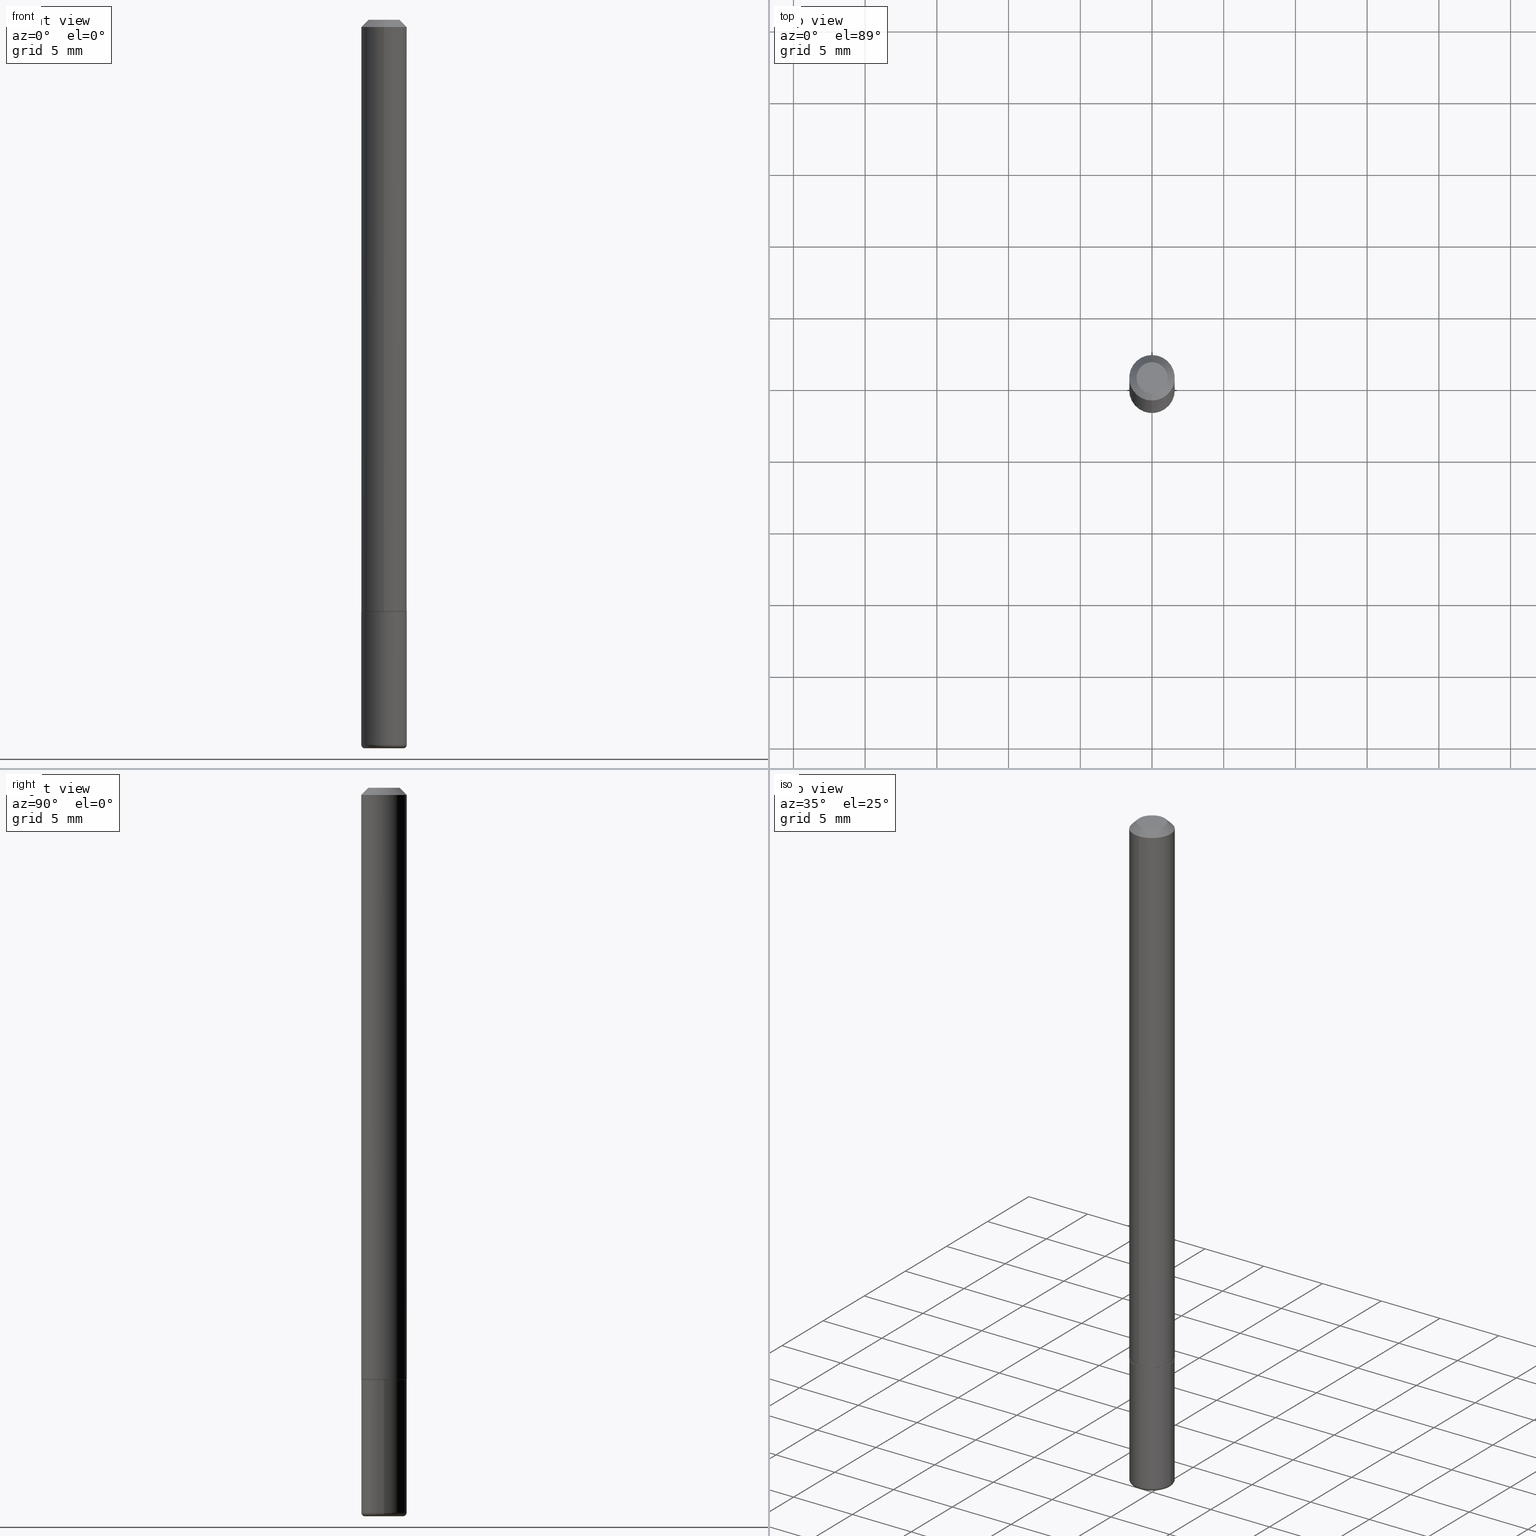
[diagram: canonical four-view strip — front | top / right | iso, engineering-drawing reading convention]
A machine part, canonical four-view strip (front | top / right | iso — engineering-drawing reading convention). The complete STEP part file that produces these views, byte-faithful:
ISO-10303-21;
HEADER;
FILE_DESCRIPTION (( 'STEP AP203' ),
    '1' );
FILE_NAME ('37986.STEP',
    '2024-03-02T10:35:28',
    ( '' ),
    ( '' ),
    'SwSTEP 2.0',
    'SolidWorks 2023',
    '' );
FILE_SCHEMA (( 'CONFIG_CONTROL_DESIGN' ));
ENDSEC;

DATA;
#1 = CARTESIAN_POINT ( 'NONE',  ( 4.911100888723118566E-31, -6.954087718326643672E-17, -0.02000000000000006981 ) ) ;
#2 = AXIS2_PLACEMENT_3D ( 'NONE', #228, #5, #43 ) ;
#3 = CC_DESIGN_APPROVAL ( #233, ( #171 ) ) ;
#4 = VECTOR ( 'NONE', #348, 39.37007874015748143 ) ;
#5 = DIRECTION ( 'NONE',  ( 2.438088387897960049E-29, -3.491481338843145188E-15, -1.000000000000000000 ) ) ;
#6 = EDGE_LOOP ( 'NONE', ( #209, #89, #118, #418 ) ) ;
#7 = CARTESIAN_POINT ( 'NONE',  ( -2.605319852608829948E-45, 3.689116391589790153E-31, 1.060992193661172718E-16 ) ) ;
#8 = VERTEX_POINT ( 'NONE', #407 ) ;
#9 = SHAPE_DEFINITION_REPRESENTATION ( #320, #254 ) ;
#10 = CC_DESIGN_DATE_AND_TIME_ASSIGNMENT ( #154, #29, ( #187 ) ) ;
#11 = DIRECTION ( 'NONE',  ( -1.000000000000000000, 7.105427357600966360E-15, 0.000000000000000000 ) ) ;
#12 = ORIENTED_EDGE ( 'NONE', *, *, #344, .T. ) ;
#13 = AXIS2_PLACEMENT_3D ( 'NONE', #50, #179, #343 ) ;
#14 = CARTESIAN_POINT ( 'NONE',  ( -0.06250000000000001388, 4.440892098500627148E-16, -3.074334431409317165E-30 ) ) ;
#15 = VERTEX_POINT ( 'NONE', #288 ) ;
#16 = EDGE_CURVE ( 'NONE', #279, #351, #217, .T. ) ;
#17 = FACE_OUTER_BOUND ( 'NONE', #39, .T. ) ;
#18 = VERTEX_POINT ( 'NONE', #64 ) ;
#19 = VECTOR ( 'NONE', #293, 39.37007874015748854 ) ;
#20 = DIRECTION ( 'NONE',  ( -6.982962677686265922E-15, -1.000000000000000000, 4.442029257990672920E-15 ) ) ;
#21 = AXIS2_PLACEMENT_3D ( 'NONE', #33, #322, #349 ) ;
#22 = ORIENTED_EDGE ( 'NONE', *, *, #411, .F. ) ;
#23 = APPROVAL_ROLE ( '' ) ;
#24 = EDGE_CURVE ( 'NONE', #364, #201, #290, .T. ) ;
#25 = DIRECTION ( 'NONE',  ( 1.000000000000000000, -6.982962677686267499E-15, 4.876176775795935793E-29 ) ) ;
#26 = SECURITY_CLASSIFICATION_LEVEL ( 'unclassified' ) ;
#27 = CARTESIAN_POINT ( 'NONE',  ( 0.06249999999999992367, -7.384483031653253552E-15, -1.990000000000000435 ) ) ;
#28 = CIRCLE ( 'NONE', #261, 0.06250000000000001388 ) ;
#29 = DATE_TIME_ROLE ( 'classification_date' ) ;
#30 = UNCERTAINTY_MEASURE_WITH_UNIT (LENGTH_MEASURE( 1.000000000000000082E-05 ), #403, 'distance_accuracy_value', 'NONE');
#31 = DIRECTION ( 'NONE',  ( -6.982962677686265922E-15, -1.000000000000000000, 3.477043859163310348E-15 ) ) ;
#32 = PRODUCT_DEFINITION ( 'UNKNOWN', '', #171, #97 ) ;
#33 = CARTESIAN_POINT ( 'NONE',  ( 3.990269472087521188E-29, -5.650196271140380549E-15, -1.625000000000000222 ) ) ;
#34 = ORIENTED_EDGE ( 'NONE', *, *, #226, .F. ) ;
#35 = AXIS2_PLACEMENT_3D ( 'NONE', #128, #221, #25 ) ;
#36 = LOCAL_TIME ( 5, 35, 28.00000000000000000, #218 ) ;
#37 = ADVANCED_FACE ( 'NONE', ( #410 ), #95, .T. ) ;
#38 = DIRECTION ( 'NONE',  ( -2.455550444361550875E-29, 3.477043859163310348E-15, 1.000000000000000000 ) ) ;
#39 = EDGE_LOOP ( 'NONE', ( #106, #239 ) ) ;
#40 = DIRECTION ( 'NONE',  ( 1.000000000000000000, -6.982962677686266711E-15, 4.883557194083112901E-29 ) ) ;
#41 = EDGE_LOOP ( 'NONE', ( #292, #375, #12, #164 ) ) ;
#42 = DIMENSIONAL_EXPONENTS ( 1.000000000000000000, 0.000000000000000000, 0.000000000000000000, 0.000000000000000000, 0.000000000000000000, 0.000000000000000000, 0.000000000000000000 ) ;
#43 = DIRECTION ( 'NONE',  ( -1.000000000000000000, 6.982962677686265922E-15, -4.876176775795935793E-29 ) ) ;
#44 = ORIENTED_EDGE ( 'NONE', *, *, #411, .T. ) ;
#45 = CIRCLE ( 'NONE', #247, 0.06250000000000012490 ) ;
#46 = PLANE ( 'NONE',  #2 ) ;
#47 = EDGE_LOOP ( 'NONE', ( #362, #90, #370, #401 ) ) ;
#48 = ADVANCED_FACE ( 'NONE', ( #354 ), #224, .T. ) ;
#49 = FACE_OUTER_BOUND ( 'NONE', #151, .T. ) ;
#50 = CARTESIAN_POINT ( 'NONE',  ( 3.987813921643159440E-29, -5.646719227281216646E-15, -1.624000000000000110 ) ) ;
#51 = VECTOR ( 'NONE', #272, 39.37007874015748143 ) ;
#52 = EDGE_CURVE ( 'NONE', #364, #172, #257, .T. ) ;
#53 = CARTESIAN_POINT ( 'NONE',  ( 3.990269472087521188E-29, -5.650196271140380549E-15, -1.625000000000000222 ) ) ;
#54 = VERTEX_POINT ( 'NONE', #415 ) ;
#55 = LINE ( 'NONE', #238, #283 ) ;
#56 = ORIENTED_EDGE ( 'NONE', *, *, #138, .F. ) ;
#57 = CIRCLE ( 'NONE', #289, 0.06149999999999998523 ) ;
#58 = LINE ( 'NONE', #142, #51 ) ;
#59 = APPROVAL ( #287, 'UNSPECIFIED' ) ;
#60 = DIRECTION ( 'NONE',  ( -2.455550444361550875E-29, 3.477043859163310348E-15, 1.000000000000000000 ) ) ;
#61 = DIRECTION ( 'NONE',  ( -4.937700262164715281E-15, -0.7071067811865691111, 0.7071067811865257013 ) ) ;
#62 = APPLICATION_PROTOCOL_DEFINITION ( 'international standard', 'config_control_design', 1994, #235 ) ;
#63 = CONICAL_SURFACE ( 'NONE', #308, 0.06149999999999998523, 0.7853981633974824739 ) ;
#64 = CARTESIAN_POINT ( 'NONE',  ( -4.287811248607203282E-16, -0.06250000000000008327, -0.01999999999999985123 ) ) ;
#65 = DIRECTION ( 'NONE',  ( -2.455550444361550595E-29, 3.477043859163310348E-15, 1.000000000000000000 ) ) ;
#66 = CALENDAR_DATE ( 2024, 2, 3 ) ;
#67 = DIRECTION ( 'NONE',  ( -6.982962677686265922E-15, -1.000000000000000000, 4.370956789862812472E-15 ) ) ;
#68 = EDGE_CURVE ( 'NONE', #8, #346, #80, .T. ) ;
#69 = DIRECTION ( 'NONE',  ( 1.000000000000000000, -6.982962677686261189E-15, 0.000000000000000000 ) ) ;
#70 = CIRCLE ( 'NONE', #192, 0.06250000000000001388 ) ;
#71 = VERTEX_POINT ( 'NONE', #27 ) ;
#72 = LOCAL_TIME ( 5, 35, 28.00000000000000000, #327 ) ;
#73 = DIRECTION ( 'NONE',  ( -2.445468806185136597E-29, 3.491481338843145583E-15, 1.000000000000000000 ) ) ;
#74 = ORIENTED_EDGE ( 'NONE', *, *, #68, .T. ) ;
#75 = CARTESIAN_POINT ( 'NONE',  ( 4.911100888723118566E-31, -6.954087718326643672E-17, -0.02000000000000006981 ) ) ;
#76 = ORIENTED_EDGE ( 'NONE', *, *, #226, .T. ) ;
#77 = DIRECTION ( 'NONE',  ( -2.455550444361550875E-29, 3.477043859163310348E-15, 1.000000000000000000 ) ) ;
#78 = ADVANCED_FACE ( 'NONE', ( #125 ), #198, .T. ) ;
#79 = CIRCLE ( 'NONE', #13, 0.06250000000000012490 ) ;
#80 = CIRCLE ( 'NONE', #309, 0.05250000000000001887 ) ;
#81 = CARTESIAN_POINT ( 'NONE',  ( 4.405364961713022947E-16, 0.06149999999999433697, -1.625000000000000666 ) ) ;
#82 = MECHANICAL_CONTEXT ( 'NONE', #158, 'mechanical' ) ;
#83 = ORIENTED_EDGE ( 'NONE', *, *, #368, .F. ) ;
#84 = EDGE_CURVE ( 'NONE', #71, #15, #268, .T. ) ;
#85 = CONICAL_SURFACE ( 'NONE', #227, 0.06250000000000001388, 0.7853981633974471688 ) ;
#86 = AXIS2_PLACEMENT_3D ( 'NONE', #113, #236, #367 ) ;
#87 = ORIENTED_EDGE ( 'NONE', *, *, #166, .F. ) ;
#88 = CARTESIAN_POINT ( 'NONE',  ( 3.990269472087521188E-29, -5.650196271140380549E-15, -1.625000000000000222 ) ) ;
#89 = ORIENTED_EDGE ( 'NONE', *, *, #361, .T. ) ;
#90 = ORIENTED_EDGE ( 'NONE', *, *, #208, .T. ) ;
#91 = COORDINATED_UNIVERSAL_TIME_OFFSET ( 5, 0, .BEHIND. ) ;
#92 = LOCAL_TIME ( 5, 35, 28.00000000000000000, #156 ) ;
#93 = CARTESIAN_POINT ( 'NONE',  ( 4.890937612370273194E-29, -6.982962677686291165E-15, -2.000000000000000000 ) ) ;
#94 = APPROVAL_STATUS ( 'not_yet_approved' ) ;
#95 = CYLINDRICAL_SURFACE ( 'NONE', #402, 0.06250000000000006939 ) ;
#96 = APPROVAL_ROLE ( '' ) ;
#97 = DESIGN_CONTEXT ( 'detailed design', #235, 'design' ) ;
#98 = DIRECTION ( 'NONE',  ( 1.000000000000000000, -6.982962677686265133E-15, 0.000000000000000000 ) ) ;
#99 = APPROVAL_DATE_TIME ( #412, #310 ) ;
#100 = CALENDAR_DATE ( 2024, 2, 3 ) ;
#101 = DIRECTION ( 'NONE',  ( -2.445468806185136597E-29, 3.491481338843145583E-15, 1.000000000000000000 ) ) ;
#102 = FACE_OUTER_BOUND ( 'NONE', #147, .T. ) ;
#103 = ADVANCED_FACE ( 'NONE', ( #319 ), #312, .T. ) ;
#104 = DIRECTION ( 'NONE',  ( 2.455550444361550875E-29, -3.477043859163310348E-15, -1.000000000000000000 ) ) ;
#105 = CIRCLE ( 'NONE', #211, 0.06250000000000001388 ) ;
#106 = ORIENTED_EDGE ( 'NONE', *, *, #138, .T. ) ;
#107 = CARTESIAN_POINT ( 'NONE',  ( 2.967759138016655168E-16, 0.04249999999999988509, -9.472475433138164541E-17 ) ) ;
#108 = ADVANCED_FACE ( 'NONE', ( #157 ), #380, .F. ) ;
#109 = DIRECTION ( 'NONE',  ( 1.000000000000000000, -6.982962677686261189E-15, 0.000000000000000000 ) ) ;
#110 = VERTEX_POINT ( 'NONE', #131 ) ;
#111 = DIRECTION ( 'NONE',  ( 2.455550444361550875E-29, -3.477043859163310348E-15, -1.000000000000000000 ) ) ;
#112 = AXIS2_PLACEMENT_3D ( 'NONE', #369, #120, #275 ) ;
#113 = CARTESIAN_POINT ( 'NONE',  ( 0.000000000000000000, 0.000000000000000000, 0.000000000000000000 ) ) ;
#114 = EDGE_LOOP ( 'NONE', ( #234, #135, #231, #304 ) ) ;
#115 = EDGE_CURVE ( 'NONE', #279, #201, #45, .T. ) ;
#116 =( NAMED_UNIT ( * ) SI_UNIT ( $, .STERADIAN. ) SOLID_ANGLE_UNIT ( ) );
#117 =( NAMED_UNIT ( * ) PLANE_ANGLE_UNIT ( ) SI_UNIT ( $, .RADIAN. ) );
#118 = ORIENTED_EDGE ( 'NONE', *, *, #24, .T. ) ;
#119 = AXIS2_PLACEMENT_3D ( 'NONE', #107, #230, #416 ) ;
#120 = DIRECTION ( 'NONE',  ( 2.438088387897960049E-29, -3.491481338843145188E-15, -1.000000000000000000 ) ) ;
#121 = CC_DESIGN_DATE_AND_TIME_ASSIGNMENT ( #129, #252, ( #32 ) ) ;
#122 = ORIENTED_EDGE ( 'NONE', *, *, #68, .F. ) ;
#123 = AXIS2_PLACEMENT_3D ( 'NONE', #387, #360, #291 ) ;
#124 = PERSON_AND_ORGANIZATION_ROLE ( 'creator' ) ;
#125 = FACE_OUTER_BOUND ( 'NONE', #398, .T. ) ;
#126 = ADVANCED_FACE ( 'NONE', ( #258 ), #255, .T. ) ;
#127 = PERSON_AND_ORGANIZATION_ROLE ( 'classification_officer' ) ;
#128 = CARTESIAN_POINT ( 'NONE',  ( 0.000000000000000000, 0.000000000000000000, 0.000000000000000000 ) ) ;
#129 = DATE_AND_TIME ( #248, #181 ) ;
#130 = CIRCLE ( 'NONE', #132, 0.04249999999999988509 ) ;
#131 = CARTESIAN_POINT ( 'NONE',  ( -0.06250000000000001388, -5.866763310108924432E-15, -1.625000000000000222 ) ) ;
#132 = AXIS2_PLACEMENT_3D ( 'NONE', #259, #77, #295 ) ;
#133 = CARTESIAN_POINT ( 'NONE',  ( 3.666055405785288149E-16, 0.04249999999999988509, -4.167514464832303416E-17 ) ) ;
#134 = DIRECTION ( 'NONE',  ( -2.455550444361550875E-29, 3.477043859163310348E-15, 1.000000000000000000 ) ) ;
#135 = ORIENTED_EDGE ( 'NONE', *, *, #178, .T. ) ;
#136 = CARTESIAN_POINT ( 'NONE',  ( 4.440892098500834224E-16, 0.06249999999999447664, -1.624000000000000554 ) ) ;
#137 = VERTEX_POINT ( 'NONE', #190 ) ;
#138 = EDGE_CURVE ( 'NONE', #54, #110, #70, .T. ) ;
#139 = CARTESIAN_POINT ( 'NONE',  ( 4.866482924308422769E-29, -6.948047864297861094E-15, -1.990000000000000435 ) ) ;
#140 = ORIENTED_EDGE ( 'NONE', *, *, #335, .T. ) ;
#141 = PLANE ( 'NONE',  #119 ) ;
#142 = CARTESIAN_POINT ( 'NONE',  ( 4.364351673553922118E-16, 0.06249999999999995143, -0.02000000000000028491 ) ) ;
#143 = CARTESIAN_POINT ( 'NONE',  ( 0.05250000000000001887, -7.349568218264820325E-15, -2.000000000000000000 ) ) ;
#144 = LINE ( 'NONE', #146, #347 ) ;
#145 = ORIENTED_EDGE ( 'NONE', *, *, #405, .T. ) ;
#146 = CARTESIAN_POINT ( 'NONE',  ( 0.06250000000000001388, -4.364351673553918173E-16, 3.047610484872460571E-30 ) ) ;
#147 = EDGE_LOOP ( 'NONE', ( #76, #276 ) ) ;
#148 = CIRCLE ( 'NONE', #186, 0.009999999999999807654 ) ;
#149 = ADVANCED_FACE ( 'NONE', ( #328 ), #63, .T. ) ;
#150 = DIRECTION ( 'NONE',  ( -2.445468806185136597E-29, 3.491481338843145583E-15, 1.000000000000000000 ) ) ;
#151 = EDGE_LOOP ( 'NONE', ( #175, #34, #240, #237 ) ) ;
#152 = DIRECTION ( 'NONE',  ( -2.455550444361550875E-29, 3.477043859163310348E-15, 1.000000000000000000 ) ) ;
#153 = AXIS2_PLACEMENT_3D ( 'NONE', #53, #306, #210 ) ;
#154 = DATE_AND_TIME ( #66, #92 ) ;
#155 = DIRECTION ( 'NONE',  ( -2.455550444361550875E-29, 3.477043859163310348E-15, 1.000000000000000000 ) ) ;
#156 = COORDINATED_UNIVERSAL_TIME_OFFSET ( 5, 0, .BEHIND. ) ;
#157 = FACE_OUTER_BOUND ( 'NONE', #264, .T. ) ;
#158 = APPLICATION_CONTEXT ( 'configuration controlled 3d designs of mechanical parts and assemblies' ) ;
#159 = PERSON ( 'UNSPECIFIED', 'UNSPECIFIED', 'UNSPECIFIED', ('UNSPECIFIED'), ('UNSPECIFIED'), ('UNSPECIFIED') ) ;
#160 = CARTESIAN_POINT ( 'NONE',  ( 3.987813921643159440E-29, -5.646719227281216646E-15, -1.624000000000000110 ) ) ;
#161 = ADVANCED_FACE ( 'NONE', ( #49 ), #85, .T. ) ;
#162 = DIRECTION ( 'NONE',  ( -6.982962677686265922E-15, -1.000000000000000000, 3.477043859163310348E-15 ) ) ;
#163 = CARTESIAN_POINT ( 'NONE',  ( -0.05250000000000001887, -6.575012928023808559E-15, -1.990000000000000435 ) ) ;
#164 = ORIENTED_EDGE ( 'NONE', *, *, #286, .F. ) ;
#165 = CARTESIAN_POINT ( 'NONE',  ( 4.369837824925013962E-16, 0.06149999999999433697, -1.625000000000000666 ) ) ;
#166 = EDGE_CURVE ( 'NONE', #346, #8, #170, .T. ) ;
#167 = ORIENTED_EDGE ( 'NONE', *, *, #222, .F. ) ;
#168 = CALENDAR_DATE ( 2024, 2, 3 ) ;
#169 = LINE ( 'NONE', #165, #19 ) ;
#170 = CIRCLE ( 'NONE', #302, 0.05250000000000001887 ) ;
#171 = PRODUCT_DEFINITION_FORMATION_WITH_SPECIFIED_SOURCE ( 'ANY', '', #385, .NOT_KNOWN. ) ;
#172 = VERTEX_POINT ( 'NONE', #81 ) ;
#173 = CLOSED_SHELL ( 'NONE', ( #78, #126, #384, #103, #281, #213 ) ) ;
#174 = DIRECTION ( 'NONE',  ( -2.445468806185136597E-29, 3.491481338843145583E-15, 1.000000000000000000 ) ) ;
#175 = ORIENTED_EDGE ( 'NONE', *, *, #208, .F. ) ;
#176 = CARTESIAN_POINT ( 'NONE',  ( 3.990269472087521188E-29, -5.650196271140380549E-15, -1.625000000000000222 ) ) ;
#177 = ORIENTED_EDGE ( 'NONE', *, *, #330, .F. ) ;
#178 = EDGE_CURVE ( 'NONE', #172, #279, #169, .T. ) ;
#179 = DIRECTION ( 'NONE',  ( -2.455550444361550875E-29, 3.477043859163310348E-15, 1.000000000000000000 ) ) ;
#180 = TOROIDAL_SURFACE ( 'NONE', #408, 0.05250000000000001887, 0.009999999999999807654 ) ;
#181 = LOCAL_TIME ( 5, 35, 28.00000000000000000, #91 ) ;
#182 = DIRECTION ( 'NONE',  ( -2.455550444361550875E-29, 3.477043859163310348E-15, 1.000000000000000000 ) ) ;
#183 = EDGE_LOOP ( 'NONE', ( #140, #393, #177, #270 ) ) ;
#184 = EDGE_CURVE ( 'NONE', #137, #244, #130, .T. ) ;
#185 = DIRECTION ( 'NONE',  ( -2.445468806185136877E-29, 3.491481338843145188E-15, 1.000000000000000000 ) ) ;
#186 = AXIS2_PLACEMENT_3D ( 'NONE', #163, #207, #11 ) ;
#187 = SECURITY_CLASSIFICATION ( '', '', #26 ) ;
#188 = DIRECTION ( 'NONE',  ( -6.982962677686265922E-15, -1.000000000000000000, 3.483106191921934765E-15 ) ) ;
#189 = ORIENTED_EDGE ( 'NONE', *, *, #405, .F. ) ;
#190 = CARTESIAN_POINT ( 'NONE',  ( -3.601761448830047996E-16, -0.04249999999999988509, 2.538735833805575223E-16 ) ) ;
#191 = APPROVAL_DATE_TIME ( #223, #233 ) ;
#192 = AXIS2_PLACEMENT_3D ( 'NONE', #202, #363, #109 ) ;
#193 = APPROVAL_PERSON_ORGANIZATION ( #280, #310, #96 ) ;
#194 = PERSON_AND_ORGANIZATION ( #159, #317 ) ;
#195 = CLOSED_SHELL ( 'NONE', ( #149, #48, #271, #161, #37, #357, #108, #251 ) ) ;
#196 = DIRECTION ( 'NONE',  ( 1.000000000000000000, -6.982962677686261189E-15, 0.000000000000000000 ) ) ;
#197 = CC_DESIGN_PERSON_AND_ORGANIZATION_ASSIGNMENT ( #381, #127, ( #187 ) ) ;
#198 = CYLINDRICAL_SURFACE ( 'NONE', #199, 0.06250000000000001388 ) ;
#199 = AXIS2_PLACEMENT_3D ( 'NONE', #285, #409, #249 ) ;
#200 = CARTESIAN_POINT ( 'NONE',  ( 4.911100888723118566E-31, -6.954087718326643672E-17, -0.02000000000000006981 ) ) ;
#201 = VERTEX_POINT ( 'NONE', #386 ) ;
#202 = CARTESIAN_POINT ( 'NONE',  ( 3.973886810050848091E-29, -5.673657175620113002E-15, -1.625000000000000222 ) ) ;
#203 = ORIENTED_EDGE ( 'NONE', *, *, #246, .F. ) ;
#204 = LINE ( 'NONE', #225, #371 ) ;
#205 = ORIENTED_EDGE ( 'NONE', *, *, #52, .F. ) ;
#206 = AXIS2_PLACEMENT_3D ( 'NONE', #413, #155, #162 ) ;
#207 = DIRECTION ( 'NONE',  ( 7.105427357601001859E-15, 1.000000000000000000, -3.491481338843145583E-15 ) ) ;
#208 = EDGE_CURVE ( 'NONE', #137, #18, #204, .T. ) ;
#209 = ORIENTED_EDGE ( 'NONE', *, *, #178, .F. ) ;
#210 = DIRECTION ( 'NONE',  ( -6.982962677686265922E-15, -1.000000000000000000, 4.442029257990672920E-15 ) ) ;
#211 = AXIS2_PLACEMENT_3D ( 'NONE', #305, #150, #278 ) ;
#212 = FACE_OUTER_BOUND ( 'NONE', #6, .T. ) ;
#213 = ADVANCED_FACE ( 'NONE', ( #266 ), #46, .T. ) ;
#214 = DIRECTION ( 'NONE',  ( -2.455550444361550875E-29, 3.477043859163310348E-15, 1.000000000000000000 ) ) ;
#215 = EDGE_LOOP ( 'NONE', ( #189, #342, #44, #83 ) ) ;
#216 =( GEOMETRIC_REPRESENTATION_CONTEXT ( 3 ) GLOBAL_UNCERTAINTY_ASSIGNED_CONTEXT ( ( #30 ) ) GLOBAL_UNIT_ASSIGNED_CONTEXT ( ( #403, #117, #116 ) ) REPRESENTATION_CONTEXT ( 'NONE', 'WORKASPACE' ) );
#217 = LINE ( 'NONE', #382, #4 ) ;
#218 = COORDINATED_UNIVERSAL_TIME_OFFSET ( 5, 0, .BEHIND. ) ;
#219 = CARTESIAN_POINT ( 'NONE',  ( 0.000000000000000000, 0.000000000000000000, 0.000000000000000000 ) ) ;
#220 = CALENDAR_DATE ( 2024, 2, 3 ) ;
#221 = DIRECTION ( 'NONE',  ( -2.445468806185136597E-29, 3.491481338843145583E-15, 1.000000000000000000 ) ) ;
#222 = EDGE_CURVE ( 'NONE', #346, #71, #323, .T. ) ;
#223 = DATE_AND_TIME ( #100, #36 ) ;
#224 = CYLINDRICAL_SURFACE ( 'NONE', #206, 0.06250000000000006939 ) ;
#225 = CARTESIAN_POINT ( 'NONE',  ( -4.287811248607203282E-16, -0.06250000000000008327, -0.01999999999999985123 ) ) ;
#226 = EDGE_CURVE ( 'NONE', #244, #137, #400, .T. ) ;
#227 = AXIS2_PLACEMENT_3D ( 'NONE', #200, #104, #392 ) ;
#228 = CARTESIAN_POINT ( 'NONE',  ( 4.890937612370273194E-29, -6.982962677686291165E-15, -2.000000000000000000 ) ) ;
#229 = CARTESIAN_POINT ( 'NONE',  ( 4.866482924308422769E-29, -6.948047864297861094E-15, -1.990000000000000435 ) ) ;
#230 = DIRECTION ( 'NONE',  ( 2.455550444361550595E-29, -3.477043859163310348E-15, -1.000000000000000000 ) ) ;
#231 = ORIENTED_EDGE ( 'NONE', *, *, #335, .F. ) ;
#232 = DIRECTION ( 'NONE',  ( 1.000000000000000000, -6.982962677686266711E-15, 4.883557194083112901E-29 ) ) ;
#233 = APPROVAL ( #94, 'UNSPECIFIED' ) ;
#234 = ORIENTED_EDGE ( 'NONE', *, *, #52, .T. ) ;
#235 = APPLICATION_CONTEXT ( 'configuration controlled 3d designs of mechanical parts and assemblies' ) ;
#236 = DIRECTION ( 'NONE',  ( 0.000000000000000000, 0.000000000000000000, 1.000000000000000000 ) ) ;
#237 = ORIENTED_EDGE ( 'NONE', *, *, #286, .T. ) ;
#238 = CARTESIAN_POINT ( 'NONE',  ( -4.364351673553921131E-16, -0.06250000000000006939, 2.173152411977071433E-16 ) ) ;
#239 = ORIENTED_EDGE ( 'NONE', *, *, #368, .T. ) ;
#240 = ORIENTED_EDGE ( 'NONE', *, *, #315, .T. ) ;
#241 = CIRCLE ( 'NONE', #277, 0.06250000000000001388 ) ;
#242 = CC_DESIGN_SECURITY_CLASSIFICATION ( #187, ( #171 ) ) ;
#243 = DIRECTION ( 'NONE',  ( -2.455550444361550595E-29, 3.477043859163310348E-15, 1.000000000000000000 ) ) ;
#244 = VERTEX_POINT ( 'NONE', #133 ) ;
#245 = ORIENTED_EDGE ( 'NONE', *, *, #222, .T. ) ;
#246 = EDGE_CURVE ( 'NONE', #15, #71, #241, .T. ) ;
#247 = AXIS2_PLACEMENT_3D ( 'NONE', #160, #152, #67 ) ;
#248 = CALENDAR_DATE ( 2024, 2, 3 ) ;
#249 = DIRECTION ( 'NONE',  ( 1.000000000000000000, -6.982962677686267499E-15, 4.876176775795935793E-29 ) ) ;
#250 = CARTESIAN_POINT ( 'NONE',  ( 4.866482924308422769E-29, -6.948047864297861094E-15, -1.990000000000000435 ) ) ;
#251 = ADVANCED_FACE ( 'NONE', ( #102 ), #141, .F. ) ;
#252 = DATE_TIME_ROLE ( 'creation_date' ) ;
#253 = CARTESIAN_POINT ( 'NONE',  ( -4.294522046776653739E-16, -0.06150000000000564043, -1.625000000000000000 ) ) ;
#254 = ADVANCED_BREP_SHAPE_REPRESENTATION ( '37986', ( #274, #273, #86 ), #216 ) ;
#255 = TOROIDAL_SURFACE ( 'NONE', #316, 0.05250000000000001887, 0.009999999999999807654 ) ;
#256 = APPROVAL_ROLE ( '' ) ;
#257 = CIRCLE ( 'NONE', #21, 0.06149999999999998523 ) ;
#258 = FACE_OUTER_BOUND ( 'NONE', #296, .T. ) ;
#259 = CARTESIAN_POINT ( 'NONE',  ( -2.605319852608829948E-45, 3.689116391589790153E-31, 1.060992193661172718E-16 ) ) ;
#260 = DIRECTION ( 'NONE',  ( -2.455550444361550875E-29, 3.477043859163310348E-15, 1.000000000000000000 ) ) ;
#261 = AXIS2_PLACEMENT_3D ( 'NONE', #75, #134, #366 ) ;
#262 = FACE_OUTER_BOUND ( 'NONE', #404, .T. ) ;
#263 = FACE_OUTER_BOUND ( 'NONE', #47, .T. ) ;
#264 = EDGE_LOOP ( 'NONE', ( #205, #299 ) ) ;
#265 = CC_DESIGN_PERSON_AND_ORGANIZATION_ASSIGNMENT ( #313, #284, ( #171 ) ) ;
#266 = FACE_OUTER_BOUND ( 'NONE', #333, .T. ) ;
#267 = PLANE ( 'NONE',  #112 ) ;
#268 = CIRCLE ( 'NONE', #414, 0.06250000000000001388 ) ;
#269 = CARTESIAN_POINT ( 'NONE',  ( -4.294522046776653739E-16, -0.06150000000000564043, -1.625000000000000000 ) ) ;
#270 = ORIENTED_EDGE ( 'NONE', *, *, #344, .F. ) ;
#271 = ADVANCED_FACE ( 'NONE', ( #263 ), #352, .T. ) ;
#272 = DIRECTION ( 'NONE',  ( 4.937700262164541731E-15, 0.7071067811865442421, -0.7071067811865507924 ) ) ;
#273 = MANIFOLD_SOLID_BREP ( 'Body-Move/Copy2[2]', #195 ) ;
#274 = MANIFOLD_SOLID_BREP ( 'Body-Move/Copy2[1]', #173 ) ;
#275 = DIRECTION ( 'NONE',  ( -1.000000000000000000, 6.982962677686265922E-15, -4.876176775795935793E-29 ) ) ;
#276 = ORIENTED_EDGE ( 'NONE', *, *, #184, .T. ) ;
#277 = AXIS2_PLACEMENT_3D ( 'NONE', #139, #73, #69 ) ;
#278 = DIRECTION ( 'NONE',  ( 1.000000000000000000, -6.982962677686261189E-15, 0.000000000000000000 ) ) ;
#279 = VERTEX_POINT ( 'NONE', #136 ) ;
#280 = PERSON_AND_ORGANIZATION ( #159, #317 ) ;
#281 = ADVANCED_FACE ( 'NONE', ( #262 ), #180, .T. ) ;
#282 = CARTESIAN_POINT ( 'NONE',  ( 4.866482924308422769E-29, -6.948047864297861094E-15, -1.990000000000000435 ) ) ;
#283 = VECTOR ( 'NONE', #243, 39.37007874015748143 ) ;
#284 = PERSON_AND_ORGANIZATION_ROLE ( 'design_supplier' ) ;
#285 = CARTESIAN_POINT ( 'NONE',  ( 0.000000000000000000, 0.000000000000000000, 0.000000000000000000 ) ) ;
#286 = EDGE_CURVE ( 'NONE', #351, #18, #28, .T. ) ;
#287 = APPROVAL_STATUS ( 'not_yet_approved' ) ;
#288 = CARTESIAN_POINT ( 'NONE',  ( -0.06249999999999992367, -6.503958654447799267E-15, -1.990000000000000435 ) ) ;
#289 = AXIS2_PLACEMENT_3D ( 'NONE', #88, #182, #20 ) ;
#290 = LINE ( 'NONE', #253, #389 ) ;
#291 = DIRECTION ( 'NONE',  ( 1.000000000000000000, -6.982962677686273021E-15, 0.000000000000000000 ) ) ;
#292 = ORIENTED_EDGE ( 'NONE', *, *, #16, .F. ) ;
#293 = DIRECTION ( 'NONE',  ( 5.024295867788231995E-15, 0.7071067811865739960, 0.7071067811865208164 ) ) ;
#294 = DATE_AND_TIME ( #168, #72 ) ;
#295 = DIRECTION ( 'NONE',  ( -6.982962677686266711E-15, -1.000000000000000000, 3.477043859163311532E-15 ) ) ;
#296 = EDGE_LOOP ( 'NONE', ( #307, #337, #326, #167 ) ) ;
#297 = EDGE_CURVE ( 'NONE', #8, #15, #148, .T. ) ;
#298 = CARTESIAN_POINT ( 'NONE',  ( 4.890937612370273194E-29, -6.982962677686291165E-15, -2.000000000000000000 ) ) ;
#299 = ORIENTED_EDGE ( 'NONE', *, *, #361, .F. ) ;
#300 = DIRECTION ( 'NONE',  ( -6.982962677686266711E-15, -1.000000000000000000, 3.477043859163311532E-15 ) ) ;
#301 = LINE ( 'NONE', #14, #395 ) ;
#302 = AXIS2_PLACEMENT_3D ( 'NONE', #298, #325, #334 ) ;
#303 = CC_DESIGN_PERSON_AND_ORGANIZATION_ASSIGNMENT ( #194, #124, ( #32 ) ) ;
#304 = ORIENTED_EDGE ( 'NONE', *, *, #24, .F. ) ;
#305 = CARTESIAN_POINT ( 'NONE',  ( 3.973886810050848091E-29, -5.673657175620113002E-15, -1.625000000000000222 ) ) ;
#306 = DIRECTION ( 'NONE',  ( -2.455550444361550875E-29, 3.477043859163310348E-15, 1.000000000000000000 ) ) ;
#307 = ORIENTED_EDGE ( 'NONE', *, *, #166, .T. ) ;
#308 = AXIS2_PLACEMENT_3D ( 'NONE', #176, #260, #390 ) ;
#309 = AXIS2_PLACEMENT_3D ( 'NONE', #93, #314, #98 ) ;
#310 = APPROVAL ( #376, 'UNSPECIFIED' ) ;
#311 = PERSON_AND_ORGANIZATION ( #159, #317 ) ;
#312 = CYLINDRICAL_SURFACE ( 'NONE', #35, 0.06250000000000001388 ) ;
#313 = PERSON_AND_ORGANIZATION ( #159, #317 ) ;
#314 = DIRECTION ( 'NONE',  ( -2.445468806185136597E-29, 3.491481338843145583E-15, 1.000000000000000000 ) ) ;
#315 = EDGE_CURVE ( 'NONE', #244, #351, #58, .T. ) ;
#316 = AXIS2_PLACEMENT_3D ( 'NONE', #282, #174, #40 ) ;
#317 = ORGANIZATION ( 'UNSPECIFIED', 'UNSPECIFIED', '' ) ;
#318 = COORDINATED_UNIVERSAL_TIME_OFFSET ( 5, 0, .BEHIND. ) ;
#319 = FACE_OUTER_BOUND ( 'NONE', #215, .T. ) ;
#320 = PRODUCT_DEFINITION_SHAPE ( 'NONE', 'NONE',  #32 ) ;
#321 = DIRECTION ( 'NONE',  ( -6.982962677686265922E-15, -1.000000000000000000, 3.477043859163310348E-15 ) ) ;
#322 = DIRECTION ( 'NONE',  ( -2.455550444361550875E-29, 3.477043859163310348E-15, 1.000000000000000000 ) ) ;
#323 = CIRCLE ( 'NONE', #123, 0.009999999999999807654 ) ;
#324 = CC_DESIGN_APPROVAL ( #59, ( #187 ) ) ;
#325 = DIRECTION ( 'NONE',  ( -2.445468806185136597E-29, 3.491481338843145583E-15, 1.000000000000000000 ) ) ;
#326 = ORIENTED_EDGE ( 'NONE', *, *, #84, .F. ) ;
#327 = COORDINATED_UNIVERSAL_TIME_OFFSET ( 5, 0, .BEHIND. ) ;
#328 = FACE_OUTER_BOUND ( 'NONE', #114, .T. ) ;
#329 = DIRECTION ( 'NONE',  ( -2.445468806185136597E-29, 3.491481338843145583E-15, 1.000000000000000000 ) ) ;
#330 = EDGE_CURVE ( 'NONE', #18, #351, #377, .T. ) ;
#331 = ORIENTED_EDGE ( 'NONE', *, *, #297, .F. ) ;
#332 = DIRECTION ( 'NONE',  ( -4.851104656540957964E-15, -0.7071067811865491270, -0.7071067811865459074 ) ) ;
#333 = EDGE_LOOP ( 'NONE', ( #87, #122 ) ) ;
#334 = DIRECTION ( 'NONE',  ( 1.000000000000000000, -6.982962677686265133E-15, 0.000000000000000000 ) ) ;
#335 = EDGE_CURVE ( 'NONE', #201, #279, #79, .T. ) ;
#336 =( LENGTH_UNIT ( ) NAMED_UNIT ( * ) SI_UNIT ( $, .METRE. ) );
#337 = ORIENTED_EDGE ( 'NONE', *, *, #297, .T. ) ;
#338 = LENGTH_MEASURE_WITH_UNIT ( LENGTH_MEASURE( 0.02539999999999999897 ), #336 );
#339 = CONICAL_SURFACE ( 'NONE', #153, 0.06149999999999998523, 0.7853981633974824739 ) ;
#340 = CC_DESIGN_APPROVAL ( #310, ( #32 ) ) ;
#341 = CARTESIAN_POINT ( 'NONE',  ( 4.911100888723118566E-31, -6.954087718326643672E-17, -0.02000000000000006981 ) ) ;
#342 = ORIENTED_EDGE ( 'NONE', *, *, #246, .T. ) ;
#343 = DIRECTION ( 'NONE',  ( -6.982962677686265922E-15, -1.000000000000000000, 4.370956789862812472E-15 ) ) ;
#344 = EDGE_CURVE ( 'NONE', #201, #18, #55, .T. ) ;
#345 = APPLICATION_PROTOCOL_DEFINITION ( 'international standard', 'config_control_design', 1994, #158 ) ;
#346 = VERTEX_POINT ( 'NONE', #143 ) ;
#347 = VECTOR ( 'NONE', #397, 39.37007874015748143 ) ;
#348 = DIRECTION ( 'NONE',  ( -2.455550444361550595E-29, 3.477043859163310348E-15, 1.000000000000000000 ) ) ;
#349 = DIRECTION ( 'NONE',  ( -6.982962677686265922E-15, -1.000000000000000000, 4.442029257990672920E-15 ) ) ;
#350 = PERSON_AND_ORGANIZATION ( #159, #317 ) ;
#351 = VERTEX_POINT ( 'NONE', #373 ) ;
#352 = CONICAL_SURFACE ( 'NONE', #388, 0.06250000000000001388, 0.7853981633974471688 ) ;
#353 = PERSON_AND_ORGANIZATION_ROLE ( 'design_owner' ) ;
#354 = FACE_OUTER_BOUND ( 'NONE', #183, .T. ) ;
#355 = PERSON_AND_ORGANIZATION_ROLE ( 'creator' ) ;
#356 = CARTESIAN_POINT ( 'NONE',  ( 3.990269472087521188E-29, -5.650196271140380549E-15, -1.625000000000000222 ) ) ;
#357 = ADVANCED_FACE ( 'NONE', ( #212 ), #339, .T. ) ;
#358 = AXIS2_PLACEMENT_3D ( 'NONE', #7, #38, #300 ) ;
#359 = APPROVAL_PERSON_ORGANIZATION ( #311, #59, #23 ) ;
#360 = DIRECTION ( 'NONE',  ( -6.982962677686266711E-15, -1.000000000000000000, 3.491481338843145583E-15 ) ) ;
#361 = EDGE_CURVE ( 'NONE', #172, #364, #57, .T. ) ;
#362 = ORIENTED_EDGE ( 'NONE', *, *, #184, .F. ) ;
#363 = DIRECTION ( 'NONE',  ( -2.445468806185136597E-29, 3.491481338843145583E-15, 1.000000000000000000 ) ) ;
#364 = VERTEX_POINT ( 'NONE', #269 ) ;
#365 = AXIS2_PLACEMENT_3D ( 'NONE', #356, #65, #31 ) ;
#366 = DIRECTION ( 'NONE',  ( -6.982962677686265922E-15, -1.000000000000000000, 3.483106191921934765E-15 ) ) ;
#367 = DIRECTION ( 'NONE',  ( 1.000000000000000000, 0.000000000000000000, 0.000000000000000000 ) ) ;
#368 = EDGE_CURVE ( 'NONE', #110, #54, #105, .T. ) ;
#369 = CARTESIAN_POINT ( 'NONE',  ( 3.973886810050848091E-29, -5.673657175620113002E-15, -1.625000000000000222 ) ) ;
#370 = ORIENTED_EDGE ( 'NONE', *, *, #330, .T. ) ;
#371 = VECTOR ( 'NONE', #332, 39.37007874015748143 ) ;
#372 = LOCAL_TIME ( 5, 35, 28.00000000000000000, #318 ) ;
#373 = CARTESIAN_POINT ( 'NONE',  ( 4.364351673553922118E-16, 0.06249999999999995143, -0.02000000000000028491 ) ) ;
#374 = CC_DESIGN_PERSON_AND_ORGANIZATION_ASSIGNMENT ( #350, #355, ( #171 ) ) ;
#375 = ORIENTED_EDGE ( 'NONE', *, *, #115, .T. ) ;
#376 = APPROVAL_STATUS ( 'not_yet_approved' ) ;
#377 = CIRCLE ( 'NONE', #383, 0.06250000000000001388 ) ;
#378 = CC_DESIGN_PERSON_AND_ORGANIZATION_ASSIGNMENT ( #406, #353, ( #385 ) ) ;
#379 = PERSON_AND_ORGANIZATION ( #159, #317 ) ;
#380 = PLANE ( 'NONE',  #365 ) ;
#381 = PERSON_AND_ORGANIZATION ( #159, #317 ) ;
#382 = CARTESIAN_POINT ( 'NONE',  ( 4.440892098500630106E-16, 0.06250000000000006939, -2.173152411977071433E-16 ) ) ;
#383 = AXIS2_PLACEMENT_3D ( 'NONE', #341, #214, #188 ) ;
#384 = ADVANCED_FACE ( 'NONE', ( #17 ), #267, .F. ) ;
#385 = PRODUCT ( '37986', '37986', '', ( #82 ) ) ;
#386 = CARTESIAN_POINT ( 'NONE',  ( -4.364351673553526701E-16, -0.06250000000000577316, -1.623999999999999888 ) ) ;
#387 = CARTESIAN_POINT ( 'NONE',  ( 0.05250000000000001887, -7.314653404876390254E-15, -1.990000000000000435 ) ) ;
#388 = AXIS2_PLACEMENT_3D ( 'NONE', #1, #111, #394 ) ;
#389 = VECTOR ( 'NONE', #61, 39.37007874015748854 ) ;
#390 = DIRECTION ( 'NONE',  ( -6.982962677686265922E-15, -1.000000000000000000, 4.442029257990672920E-15 ) ) ;
#391 = ORIENTED_EDGE ( 'NONE', *, *, #84, .T. ) ;
#392 = DIRECTION ( 'NONE',  ( 6.982962677686265922E-15, 1.000000000000000000, -3.483106191921934765E-15 ) ) ;
#393 = ORIENTED_EDGE ( 'NONE', *, *, #16, .T. ) ;
#394 = DIRECTION ( 'NONE',  ( 6.982962677686265922E-15, 1.000000000000000000, -3.483106191921934765E-15 ) ) ;
#395 = VECTOR ( 'NONE', #185, 39.37007874015748143 ) ;
#396 = APPROVAL_PERSON_ORGANIZATION ( #379, #233, #256 ) ;
#397 = DIRECTION ( 'NONE',  ( -2.445468806185136877E-29, 3.491481338843145188E-15, 1.000000000000000000 ) ) ;
#398 = EDGE_LOOP ( 'NONE', ( #391, #145, #56, #22 ) ) ;
#399 = APPROVAL_DATE_TIME ( #294, #59 ) ;
#400 = CIRCLE ( 'NONE', #358, 0.04249999999999988509 ) ;
#401 = ORIENTED_EDGE ( 'NONE', *, *, #315, .F. ) ;
#402 = AXIS2_PLACEMENT_3D ( 'NONE', #219, #60, #321 ) ;
#403 =( CONVERSION_BASED_UNIT ( 'INCH', #338 ) LENGTH_UNIT ( ) NAMED_UNIT ( #42 ) );
#404 = EDGE_LOOP ( 'NONE', ( #331, #74, #245, #203 ) ) ;
#405 = EDGE_CURVE ( 'NONE', #15, #110, #301, .T. ) ;
#406 = PERSON_AND_ORGANIZATION ( #159, #317 ) ;
#407 = CARTESIAN_POINT ( 'NONE',  ( -0.05250000000000001887, -6.556943197930020132E-15, -2.000000000000000000 ) ) ;
#408 = AXIS2_PLACEMENT_3D ( 'NONE', #229, #329, #232 ) ;
#409 = DIRECTION ( 'NONE',  ( -2.445468806185136597E-29, 3.491481338843145583E-15, 1.000000000000000000 ) ) ;
#410 = FACE_OUTER_BOUND ( 'NONE', #41, .T. ) ;
#411 = EDGE_CURVE ( 'NONE', #71, #54, #144, .T. ) ;
#412 = DATE_AND_TIME ( #220, #372 ) ;
#413 = CARTESIAN_POINT ( 'NONE',  ( 0.000000000000000000, 0.000000000000000000, 0.000000000000000000 ) ) ;
#414 = AXIS2_PLACEMENT_3D ( 'NONE', #250, #101, #196 ) ;
#415 = CARTESIAN_POINT ( 'NONE',  ( 0.06250000000000001388, -6.110092342975504671E-15, -1.625000000000000222 ) ) ;
#416 = DIRECTION ( 'NONE',  ( 6.982962677686265922E-15, 1.000000000000000000, -3.477043859163310348E-15 ) ) ;
#417 = PRODUCT_RELATED_PRODUCT_CATEGORY ( 'detail', '', ( #385 ) ) ;
#418 = ORIENTED_EDGE ( 'NONE', *, *, #115, .F. ) ;
ENDSEC;
END-ISO-10303-21;
